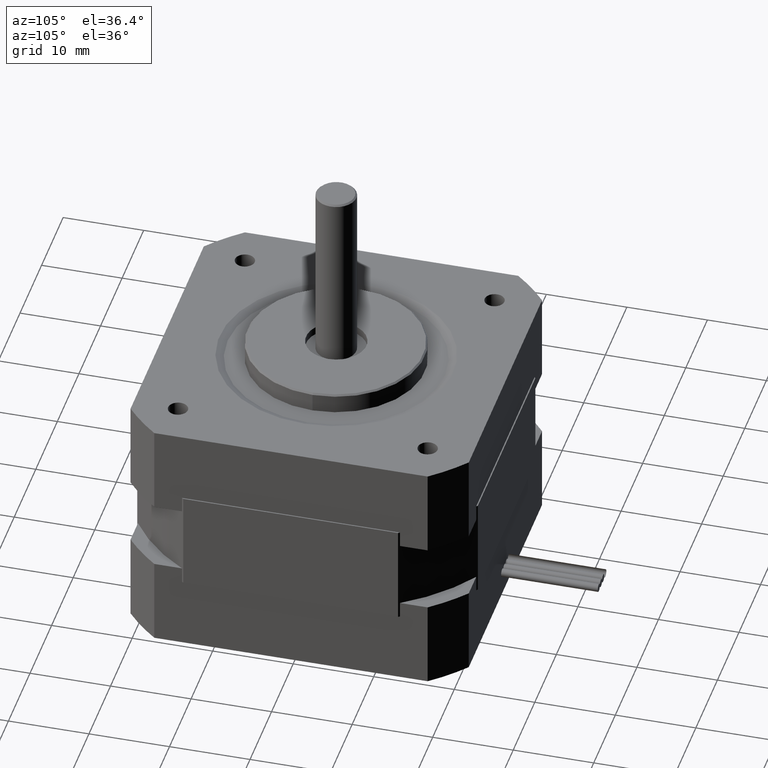
[diagram: clean part render]
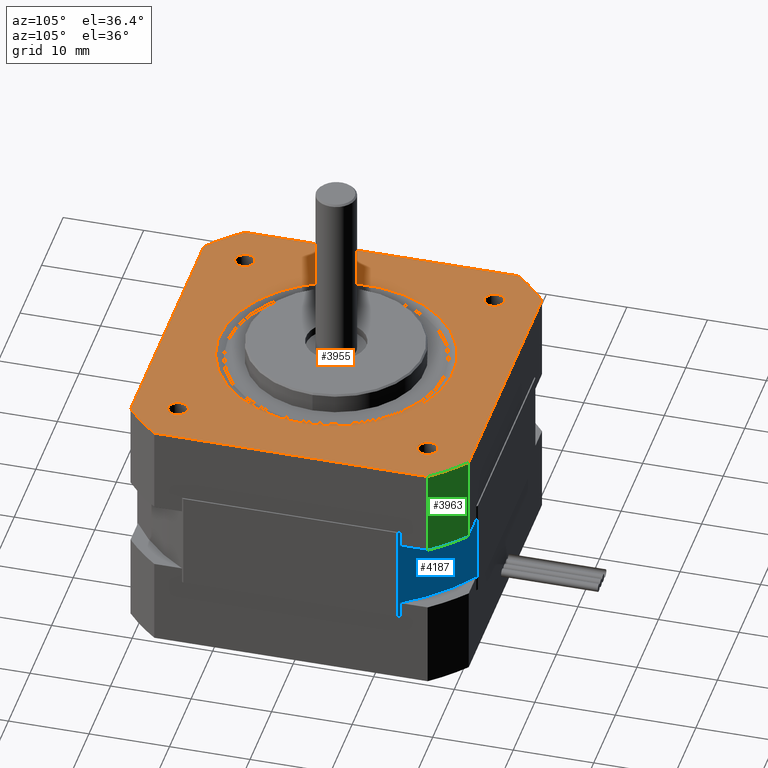
[diagram: same view with three faces highlighted in distinct colors, each labeled with its STEP entity id]
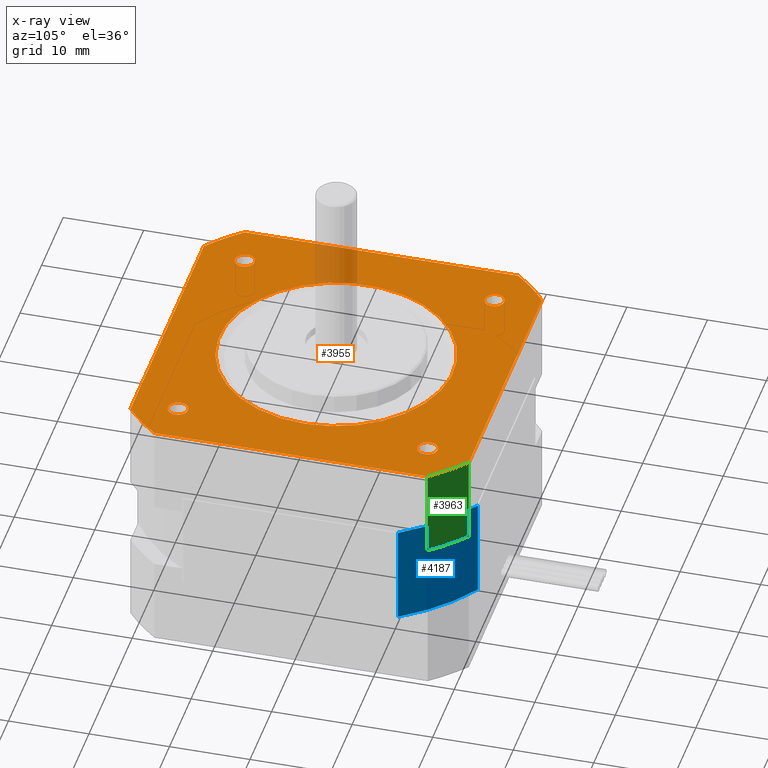
[diagram: x-ray of the same camera — body ghosted, the three highlighted faces saturated]
A machine part, auxiliary view with three faces highlighted in distinct colors.
The next image is the same camera in x-ray (body ghosted, the three faces saturated) — at least one of them is partly hidden behind the body in this view.
Their STEP definitions:

[orange] entity #3955 — the highlighted planar face has unit normal (-0, -0, 1).
#132=LINE('',#6039,#380);
#142=LINE('',#6067,#390);
#144=LINE('',#6078,#392);
#145=LINE('',#6082,#393);
#380=VECTOR('',#4779,33.9411254969543);
#390=VECTOR('',#4807,33.9411254969543);
#392=VECTOR('',#4819,33.9411254969543);
#393=VECTOR('',#4822,33.9411254969543);
#617=PLANE('',#4241);
#743=FACE_BOUND('',#1147,.T.);
#744=FACE_BOUND('',#1148,.T.);
#745=FACE_BOUND('',#1149,.T.);
#746=FACE_BOUND('',#1150,.T.);
#747=FACE_BOUND('',#1151,.T.);
#885=FACE_OUTER_BOUND('',#1146,.T.);
#1146=EDGE_LOOP('',(#2706,#2707,#2708,#2709,#2710,#2711,#2712,#2713));
#1147=EDGE_LOOP('',(#2714));
#1148=EDGE_LOOP('',(#2715));
#1149=EDGE_LOOP('',(#2716));
#1150=EDGE_LOOP('',(#2717));
#1151=EDGE_LOOP('',(#2718));
#1456=CIRCLE('',#4209,1.2295);
#1458=CIRCLE('',#4213,1.2295);
#1460=CIRCLE('',#4217,1.2295);
#1462=CIRCLE('',#4221,1.2295);
#1469=CIRCLE('',#4240,14.5);
#1470=CIRCLE('',#4242,27.);
#1471=CIRCLE('',#4243,27.);
#1472=CIRCLE('',#4244,27.);
#1473=CIRCLE('',#4245,27.);
#1688=VERTEX_POINT('',#5970);
#1690=VERTEX_POINT('',#5976);
#1692=VERTEX_POINT('',#5982);
#1694=VERTEX_POINT('',#5988);
#1713=VERTEX_POINT('',#6036);
#1714=VERTEX_POINT('',#6038);
#1722=VERTEX_POINT('',#6064);
#1723=VERTEX_POINT('',#6066);
#1725=VERTEX_POINT('',#6072);
#1726=VERTEX_POINT('',#6075);
#1727=VERTEX_POINT('',#6077);
#1728=VERTEX_POINT('',#6079);
#1729=VERTEX_POINT('',#6081);
#2076=EDGE_CURVE('',#1688,#1688,#1456,.T.);
#2078=EDGE_CURVE('',#1690,#1690,#1458,.T.);
#2080=EDGE_CURVE('',#1692,#1692,#1460,.T.);
#2082=EDGE_CURVE('',#1694,#1694,#1462,.T.);
#2106=EDGE_CURVE('',#1713,#1714,#132,.T.);
#2120=EDGE_CURVE('',#1722,#1723,#142,.T.);
#2123=EDGE_CURVE('',#1725,#1725,#1469,.T.);
#2124=EDGE_CURVE('',#1726,#1722,#1470,.T.);
#2125=EDGE_CURVE('',#1727,#1726,#144,.T.);
#2126=EDGE_CURVE('',#1728,#1727,#1471,.T.);
#2127=EDGE_CURVE('',#1729,#1728,#145,.T.);
#2128=EDGE_CURVE('',#1714,#1729,#1472,.T.);
#2129=EDGE_CURVE('',#1723,#1713,#1473,.T.);
#2706=ORIENTED_EDGE('',*,*,#2120,.F.);
#2707=ORIENTED_EDGE('',*,*,#2124,.F.);
#2708=ORIENTED_EDGE('',*,*,#2125,.F.);
#2709=ORIENTED_EDGE('',*,*,#2126,.F.);
#2710=ORIENTED_EDGE('',*,*,#2127,.F.);
#2711=ORIENTED_EDGE('',*,*,#2128,.F.);
#2712=ORIENTED_EDGE('',*,*,#2106,.F.);
#2713=ORIENTED_EDGE('',*,*,#2129,.F.);
#2714=ORIENTED_EDGE('',*,*,#2076,.T.);
#2715=ORIENTED_EDGE('',*,*,#2078,.T.);
#2716=ORIENTED_EDGE('',*,*,#2080,.T.);
#2717=ORIENTED_EDGE('',*,*,#2082,.T.);
#2718=ORIENTED_EDGE('',*,*,#2123,.F.);
#3955=ADVANCED_FACE('',(#885,#743,#744,#745,#746,#747),#617,.T.);
#4209=AXIS2_PLACEMENT_3D('',#5971,#4717,#4718);
#4213=AXIS2_PLACEMENT_3D('',#5977,#4725,#4726);
#4217=AXIS2_PLACEMENT_3D('',#5983,#4733,#4734);
#4221=AXIS2_PLACEMENT_3D('',#5989,#4741,#4742);
#4240=AXIS2_PLACEMENT_3D('',#6073,#4813,#4814);
#4241=AXIS2_PLACEMENT_3D('',#6074,#4815,#4816);
#4242=AXIS2_PLACEMENT_3D('',#6076,#4817,#4818);
#4243=AXIS2_PLACEMENT_3D('',#6080,#4820,#4821);
#4244=AXIS2_PLACEMENT_3D('',#6083,#4823,#4824);
#4245=AXIS2_PLACEMENT_3D('',#6084,#4825,#4826);
#4717=DIRECTION('center_axis',(8.74300631892311E-16,2.59037577520082E-32,
-1.));
#4718=DIRECTION('ref_axis',(1.,3.37142547652287E-16,8.74300631892311E-16));
#4725=DIRECTION('center_axis',(8.74300631892311E-16,2.59037577520082E-32,
-1.));
#4726=DIRECTION('ref_axis',(1.,3.37142547652287E-16,8.74300631892311E-16));
#4733=DIRECTION('center_axis',(8.74300631892311E-16,2.59037577520082E-32,
-1.));
#4734=DIRECTION('ref_axis',(1.,3.37142547652287E-16,8.74300631892311E-16));
#4741=DIRECTION('center_axis',(8.74300631892311E-16,2.59037577520082E-32,
-1.));
#4742=DIRECTION('ref_axis',(1.,3.37142547652287E-16,8.74300631892311E-16));
#4779=DIRECTION('',(7.54604712049908E-17,-1.,4.00713799054067E-32));
#4807=DIRECTION('',(1.,7.54604712049907E-17,8.74300631892311E-16));
#4813=DIRECTION('center_axis',(-8.74300631892311E-16,-2.59037577520082E-32,
1.));
#4814=DIRECTION('ref_axis',(-1.,-7.54604712049907E-17,-8.74300631892311E-16));
#4815=DIRECTION('center_axis',(-8.74300631892311E-16,-2.59037577520082E-32,
1.));
#4816=DIRECTION('ref_axis',(1.,7.54604712049908E-17,8.88178419700125E-16));
#4817=DIRECTION('center_axis',(8.74300631892311E-16,2.59037577520082E-32,
-1.));
#4818=DIRECTION('ref_axis',(-0.628539361054709,0.777777777777778,-5.49532360539321E-16));
#4819=DIRECTION('',(-7.54604712049907E-17,1.,-4.00713799054067E-32));
#4820=DIRECTION('center_axis',(8.74300631892311E-16,2.59037577520082E-32,
-1.));
#4821=DIRECTION('ref_axis',(-0.777777777777778,-0.628539361054709,-6.80011602582908E-16));
#4822=DIRECTION('',(-1.,-7.54604712049907E-17,-8.74300631892311E-16));
#4823=DIRECTION('center_axis',(8.74300631892311E-16,2.59037577520082E-32,
-1.));
#4824=DIRECTION('ref_axis',(0.628539361054709,-0.777777777777778,5.49532360539321E-16));
#4825=DIRECTION('center_axis',(8.74300631892311E-16,2.59037577520082E-32,
-1.));
#4826=DIRECTION('ref_axis',(0.777777777777778,0.628539361054709,6.80011602582908E-16));
#5970=CARTESIAN_POINT('',(-14.2705,-15.5,5.99999999999987));
#5971=CARTESIAN_POINT('Origin',(-15.5,-15.5,5.99999999999987));
#5976=CARTESIAN_POINT('',(16.7295,15.5,5.9999999999999));
#5977=CARTESIAN_POINT('Origin',(15.5,15.5,5.9999999999999));
#5982=CARTESIAN_POINT('',(16.7295,-15.5,5.9999999999999));
#5983=CARTESIAN_POINT('Origin',(15.5,-15.5,5.9999999999999));
#5988=CARTESIAN_POINT('',(-14.2705,15.5,5.99999999999987));
#5989=CARTESIAN_POINT('Origin',(-15.5,15.5,5.99999999999987));
#6036=CARTESIAN_POINT('',(21.,16.9705627484771,5.9999999999999));
#6038=CARTESIAN_POINT('',(21.,-16.9705627484771,5.9999999999999));
#6039=CARTESIAN_POINT('',(21.,16.9705627484771,5.9999999999999));
#6064=CARTESIAN_POINT('',(-16.9705627484772,21.,5.99999999999987));
#6066=CARTESIAN_POINT('',(16.9705627484771,21.,5.9999999999999));
#6067=CARTESIAN_POINT('',(-16.9705627484772,21.,5.99999999999987));
#6072=CARTESIAN_POINT('',(14.5,7.60206558651575E-15,5.9999999999999));
#6073=CARTESIAN_POINT('Origin',(-9.86393403787002E-15,4.73220975404338E-15,
5.99999999999989));
#6074=CARTESIAN_POINT('Origin',(-9.46325103787002E-15,8.06287875404338E-15,
5.99999999999989));
#6075=CARTESIAN_POINT('',(-21.,16.9705627484771,5.99999999999987));
#6076=CARTESIAN_POINT('Origin',(-9.86393403787002E-15,4.73220975404338E-15,
5.99999999999989));
#6077=CARTESIAN_POINT('',(-21.,-16.9705627484771,5.99999999999987));
#6078=CARTESIAN_POINT('',(-21.,-16.9705627484771,5.99999999999987));
#6079=CARTESIAN_POINT('',(-16.9705627484771,-21.,5.99999999999987));
#6080=CARTESIAN_POINT('Origin',(-9.86393403787002E-15,4.73220975404338E-15,
5.99999999999989));
#6081=CARTESIAN_POINT('',(16.9705627484771,-21.,5.9999999999999));
#6082=CARTESIAN_POINT('',(16.9705627484771,-21.,5.9999999999999));
#6083=CARTESIAN_POINT('Origin',(-9.86393403787002E-15,4.73220975404338E-15,
5.99999999999989));
#6084=CARTESIAN_POINT('Origin',(-9.86393403787002E-15,4.73220975404338E-15,
5.99999999999989));

[blue] entity #4187 — the highlighted cylindrical surface (partial cylindrical patch) has radius 25 mm, axis along (0, -0, 1).
#355=LINE('',#7321,#603);
#356=LINE('',#7325,#604);
#603=VECTOR('',#5954,10.);
#604=VECTOR('',#5959,10.);
#864=CYLINDRICAL_SURFACE('',#4705,25.);
#1117=FACE_OUTER_BOUND('',#1451,.T.);
#1451=EDGE_LOOP('',(#3738,#3739,#3740,#3741));
#1679=CIRCLE('',#4692,25.);
#1686=CIRCLE('',#4706,25.);
#2059=VERTEX_POINT('',#7280);
#2060=VERTEX_POINT('',#7281);
#2073=VERTEX_POINT('',#7319);
#2074=VERTEX_POINT('',#7323);
#2611=EDGE_CURVE('',#2059,#2060,#1679,.T.);
#2631=EDGE_CURVE('',#2073,#2060,#355,.T.);
#2632=EDGE_CURVE('',#2073,#2074,#1686,.T.);
#2633=EDGE_CURVE('',#2059,#2074,#356,.T.);
#3738=ORIENTED_EDGE('',*,*,#2632,.T.);
#3739=ORIENTED_EDGE('',*,*,#2633,.F.);
#3740=ORIENTED_EDGE('',*,*,#2611,.T.);
#3741=ORIENTED_EDGE('',*,*,#2631,.F.);
#4187=ADVANCED_FACE('',(#1117),#864,.T.);
#4692=AXIS2_PLACEMENT_3D('',#7282,#5915,#5916);
#4705=AXIS2_PLACEMENT_3D('',#7322,#5955,#5956);
#4706=AXIS2_PLACEMENT_3D('',#7324,#5957,#5958);
#5915=DIRECTION('center_axis',(9.4368957093138E-16,-2.46519032881584E-32,
1.));
#5916=DIRECTION('ref_axis',(-0.845999999999999,-0.533182895449583,7.98361377007946E-16));
#5954=DIRECTION('',(-9.4368957093138E-16,2.46519032881584E-32,-1.));
#5955=DIRECTION('center_axis',(9.4368957093138E-16,-2.46519032881584E-32,
1.));
#5956=DIRECTION('ref_axis',(-0.845999999999999,-0.533182895449583,7.98361377007946E-16));
#5957=DIRECTION('center_axis',(-9.4368957093138E-16,2.46519032881584E-32,
-1.));
#5958=DIRECTION('ref_axis',(-0.845999999999999,-0.533182895449583,7.98361377007946E-16));
#5959=DIRECTION('',(9.4368957093138E-16,-2.46519032881584E-32,1.));
#7280=CARTESIAN_POINT('',(21.15,13.3295723862396,-15.5000000000001));
#7281=CARTESIAN_POINT('',(13.3295723862395,21.15,-15.5000000000001));
#7282=CARTESIAN_POINT('Origin',(-1.57894530783409E-14,4.71844785465692E-15,
-15.5000000000001));
#7319=CARTESIAN_POINT('',(13.3295723862395,21.15,-3.00000000000008));
#7321=CARTESIAN_POINT('',(13.3295723862395,21.15,-9.25000000000008));
#7322=CARTESIAN_POINT('Origin',(-9.89139326001978E-15,4.71844785465692E-15,
-9.25000000000007));
#7323=CARTESIAN_POINT('',(21.15,13.3295723862396,-3.00000000000009));
#7324=CARTESIAN_POINT('Origin',(-3.99333344169866E-15,4.71844785465692E-15,
-3.00000000000007));
#7325=CARTESIAN_POINT('',(21.15,13.3295723862396,-9.25000000000009));

[green] entity #3963 — the highlighted cylindrical surface (partial cylindrical patch) has radius 27 mm, axis along (-0, -0, 1).
#131=LINE('',#6037,#379);
#143=LINE('',#6068,#391);
#379=VECTOR('',#4778,11.);
#391=VECTOR('',#4808,11.);
#824=CYLINDRICAL_SURFACE('',#4259,27.);
#893=FACE_OUTER_BOUND('',#1166,.T.);
#1166=EDGE_LOOP('',(#2733,#2734,#2735,#2736));
#1464=CIRCLE('',#4230,27.);
#1473=CIRCLE('',#4245,27.);
#1712=VERTEX_POINT('',#6034);
#1713=VERTEX_POINT('',#6036);
#1716=VERTEX_POINT('',#6044);
#1723=VERTEX_POINT('',#6066);
#2105=EDGE_CURVE('',#1712,#1713,#131,.T.);
#2110=EDGE_CURVE('',#1712,#1716,#1464,.T.);
#2121=EDGE_CURVE('',#1716,#1723,#143,.T.);
#2129=EDGE_CURVE('',#1723,#1713,#1473,.T.);
#2733=ORIENTED_EDGE('',*,*,#2129,.T.);
#2734=ORIENTED_EDGE('',*,*,#2105,.F.);
#2735=ORIENTED_EDGE('',*,*,#2110,.T.);
#2736=ORIENTED_EDGE('',*,*,#2121,.T.);
#3963=ADVANCED_FACE('',(#893),#824,.T.);
#4230=AXIS2_PLACEMENT_3D('',#6046,#4785,#4786);
#4245=AXIS2_PLACEMENT_3D('',#6084,#4825,#4826);
#4259=AXIS2_PLACEMENT_3D('',#6104,#4853,#4854);
#4778=DIRECTION('',(-8.7430063189231E-16,-2.59037577520082E-32,1.));
#4785=DIRECTION('center_axis',(-8.74300631892311E-16,-2.59037577520082E-32,
1.));
#4786=DIRECTION('ref_axis',(0.777777777777778,0.628539361054709,6.80011602582908E-16));
#4808=DIRECTION('',(-8.7430063189231E-16,-2.59037577520082E-32,1.));
#4825=DIRECTION('center_axis',(8.74300631892311E-16,2.59037577520082E-32,
-1.));
#4826=DIRECTION('ref_axis',(0.777777777777778,0.628539361054709,6.80011602582908E-16));
#4853=DIRECTION('center_axis',(-8.74300631892311E-16,-2.59037577520082E-32,
1.));
#4854=DIRECTION('ref_axis',(0.777777777777778,0.628539361054709,6.80011602582908E-16));
#6034=CARTESIAN_POINT('',(21.,16.9705627484771,-5.0000000000001));
#6036=CARTESIAN_POINT('',(21.,16.9705627484771,5.9999999999999));
#6037=CARTESIAN_POINT('',(21.,16.9705627484771,-5.0000000000001));
#6044=CARTESIAN_POINT('',(16.9705627484771,21.,-5.0000000000001));
#6046=CARTESIAN_POINT('Origin',(-2.466270870546E-16,4.73220975404338E-15,
-5.00000000000011));
#6066=CARTESIAN_POINT('',(16.9705627484771,21.,5.9999999999999));
#6068=CARTESIAN_POINT('',(16.9705627484771,21.,-5.0000000000001));
#6084=CARTESIAN_POINT('Origin',(-9.86393403787002E-15,4.73220975404338E-15,
5.99999999999989));
#6104=CARTESIAN_POINT('Origin',(-2.466270870546E-16,4.73220975404338E-15,
-5.00000000000011));